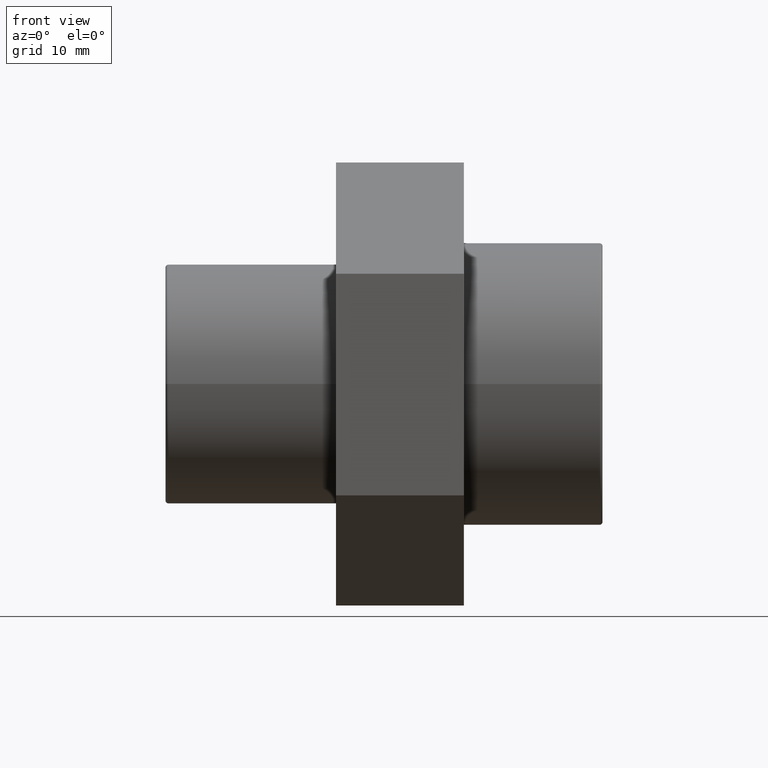
[diagram: clean part render]
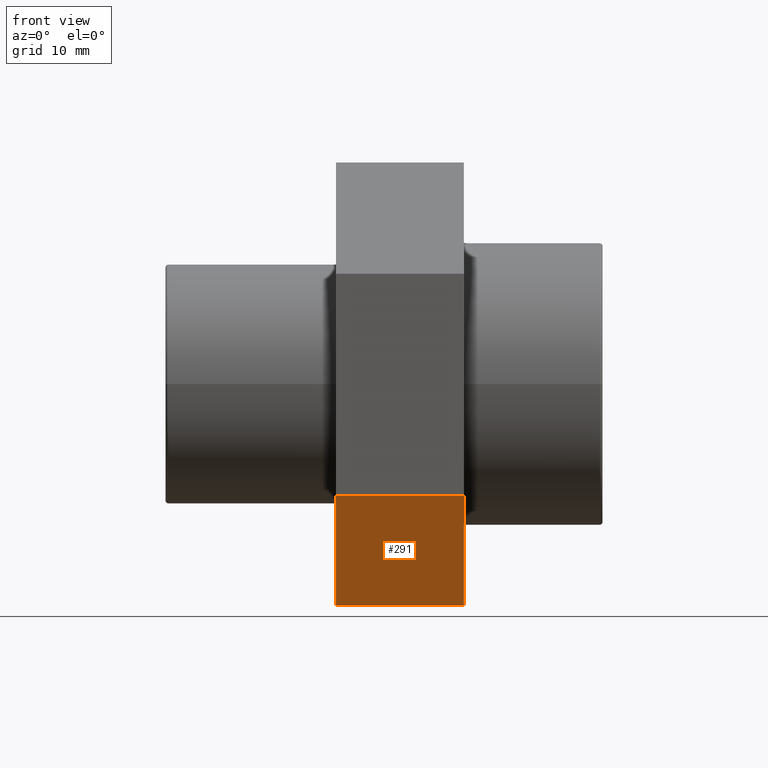
[diagram: same view with one face highlighted and labeled with its STEP entity id]
A machine part, front view. The second image highlights one B-rep face of the part: STEP entity #291.
In plain terms, the highlighted planar face has unit normal (0, -0.4974, -0.8675).
Its self-contained STEP definition (entity closure, byte-faithful):
#16=LINE('',#468,#34);
#19=LINE('',#474,#37);
#20=LINE('',#476,#38);
#21=LINE('',#477,#39);
#34=VECTOR('',#387,12.);
#37=VECTOR('',#392,20.7846096908266);
#38=VECTOR('',#393,12.);
#39=VECTOR('',#394,20.7846096908266);
#59=PLANE('',#326);
#94=FACE_OUTER_BOUND('',#125,.T.);
#125=EDGE_LOOP('',(#236,#237,#238,#239));
#167=VERTEX_POINT('',#465);
#168=VERTEX_POINT('',#467);
#170=VERTEX_POINT('',#473);
#171=VERTEX_POINT('',#475);
#193=EDGE_CURVE('',#168,#167,#16,.T.);
#196=EDGE_CURVE('',#167,#170,#19,.T.);
#197=EDGE_CURVE('',#171,#170,#20,.T.);
#198=EDGE_CURVE('',#171,#168,#21,.T.);
#236=ORIENTED_EDGE('',*,*,#196,.T.);
#237=ORIENTED_EDGE('',*,*,#197,.F.);
#238=ORIENTED_EDGE('',*,*,#198,.T.);
#239=ORIENTED_EDGE('',*,*,#193,.T.);
#291=ADVANCED_FACE('',(#94),#59,.T.);
#326=AXIS2_PLACEMENT_3D('',#472,#390,#391);
#387=DIRECTION('',(-1.,-1.23358113847239E-16,0.));
#390=DIRECTION('center_axis',(6.13622206465704E-17,-0.497431573269339,-0.867503216083255));
#391=DIRECTION('ref_axis',(1.77635683940025E-16,-0.867503216083255,0.497431573269339));
#392=DIRECTION('',(-1.59357755523959E-16,0.867503216083255,-0.497431573269339));
#393=DIRECTION('',(-1.,-1.23358113847239E-16,0.));
#394=DIRECTION('',(1.59357755523959E-16,-0.867503216083255,0.497431573269339));
#465=CARTESIAN_POINT('',(-4.5,-17.9691261947618,-10.4455973403501));
#467=CARTESIAN_POINT('',(7.50000000000001,-17.9691261947618,-10.4455973403501));
#468=CARTESIAN_POINT('',(7.50000000000001,-17.9691261947618,-10.4455973403501));
#472=CARTESIAN_POINT('Origin',(7.5,0.0615895570654794,-20.7845184386472));
#473=CARTESIAN_POINT('',(-4.5,0.0615895570654779,-20.7845184386472));
#474=CARTESIAN_POINT('',(-4.5,-4.44608938089132,-18.1997881640729));
#475=CARTESIAN_POINT('',(7.5,0.0615895570654794,-20.7845184386472));
#476=CARTESIAN_POINT('',(7.5,0.0615895570654794,-20.7845184386472));
#477=CARTESIAN_POINT('',(7.5,0.0615895570654794,-20.7845184386472));